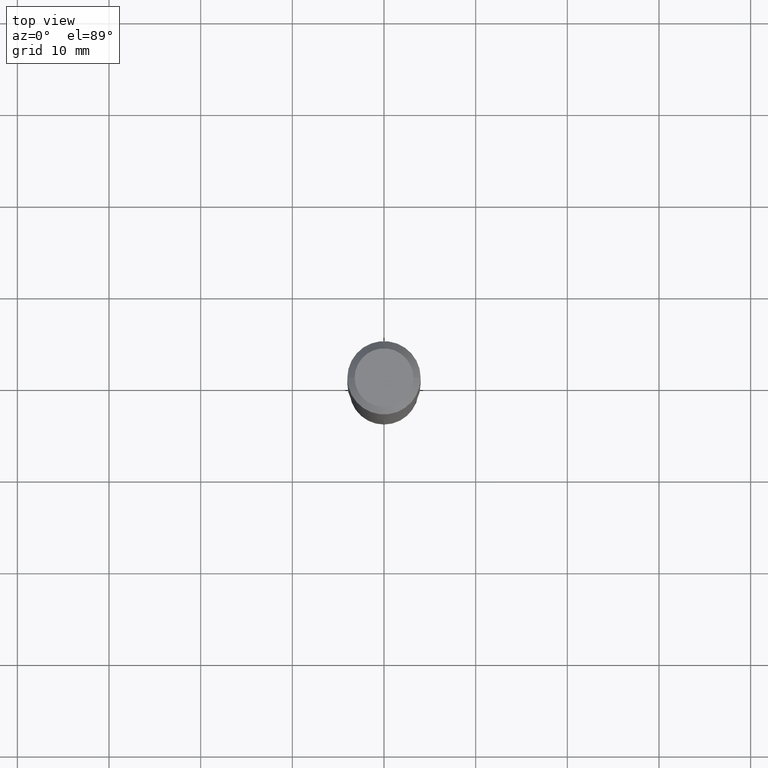
[diagram: clean part render]
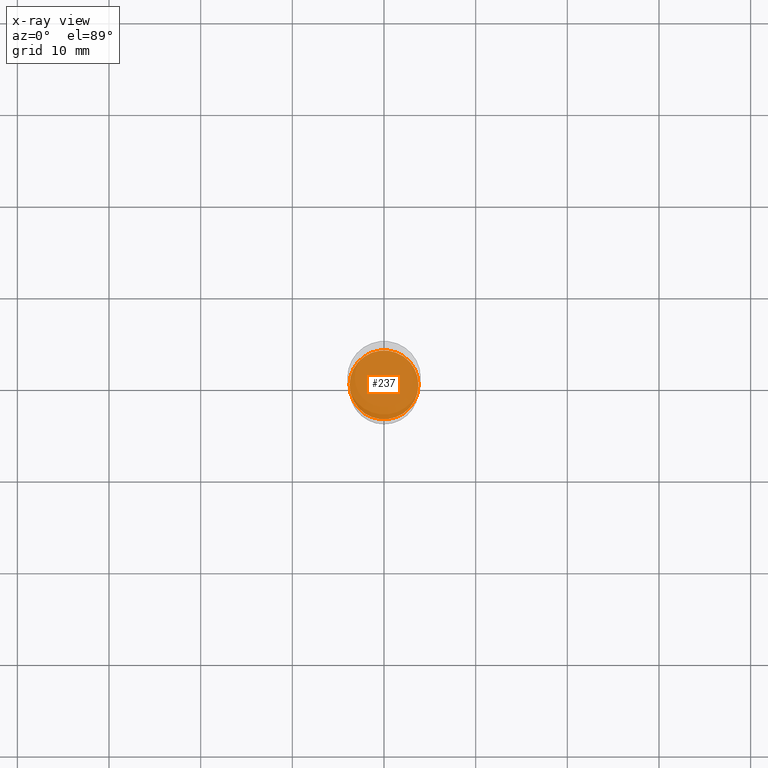
[diagram: x-ray — body ghosted, one internal face saturated and labeled with its STEP entity id]
A machine part, top view, then the same camera in x-ray: the body is ghosted and one INTERNAL B-rep face — a face not visible from any outside direction — is saturated and labeled: STEP entity #237.
In plain terms, the highlighted planar face has unit normal (-0, 0, 1).
Its self-contained STEP definition (entity closure, byte-faithful):
#4 = EDGE_LOOP ( 'NONE', ( #267, #236 ) ) ;
#13 = AXIS2_PLACEMENT_3D ( 'NONE', #221, #308, #468 ) ;
#19 = DIRECTION ( 'NONE',  ( 1.000000000000000000, -6.982962677686265922E-15, 4.876176775795935793E-29 ) ) ;
#24 = CIRCLE ( 'NONE', #13, 0.1479499999999999982 ) ;
#125 = CIRCLE ( 'NONE', #195, 0.1479499999999999982 ) ;
#153 = CARTESIAN_POINT ( 'NONE',  ( -0.1479499999999999982, -5.205281391412926987E-15, -1.792699999999999738 ) ) ;
#174 = EDGE_CURVE ( 'NONE', #206, #177, #24, .T. ) ;
#177 = VERTEX_POINT ( 'NONE', #338 ) ;
#195 = AXIS2_PLACEMENT_3D ( 'NONE', #294, #219, #455 ) ;
#206 = VERTEX_POINT ( 'NONE', #153 ) ;
#219 = DIRECTION ( 'NONE',  ( -2.445468806185136597E-29, 3.491481338843145583E-15, 1.000000000000000000 ) ) ;
#221 = CARTESIAN_POINT ( 'NONE',  ( 4.383991928848093439E-29, -6.259178596144105809E-15, -1.792699999999999738 ) ) ;
#234 = DIRECTION ( 'NONE',  ( -2.438088387897960049E-29, 3.491481338843145188E-15, 1.000000000000000000 ) ) ;
#236 = ORIENTED_EDGE ( 'NONE', *, *, #174, .F. ) ;
#237 = ADVANCED_FACE ( 'NONE', ( #351 ), #275, .F. ) ;
#267 = ORIENTED_EDGE ( 'NONE', *, *, #419, .F. ) ;
#275 = PLANE ( 'NONE',  #278 ) ;
#278 = AXIS2_PLACEMENT_3D ( 'NONE', #438, #234, #19 ) ;
#294 = CARTESIAN_POINT ( 'NONE',  ( 4.383991928848093439E-29, -6.259178596144105809E-15, -1.792699999999999738 ) ) ;
#308 = DIRECTION ( 'NONE',  ( -2.445468806185136597E-29, 3.491481338843145583E-15, 1.000000000000000000 ) ) ;
#338 = CARTESIAN_POINT ( 'NONE',  ( 0.1479499999999999982, -7.292307924307788697E-15, -1.792699999999999738 ) ) ;
#351 = FACE_OUTER_BOUND ( 'NONE', #4, .T. ) ;
#419 = EDGE_CURVE ( 'NONE', #177, #206, #125, .T. ) ;
#438 = CARTESIAN_POINT ( 'NONE',  ( 4.383991928848093439E-29, -6.259178596144105809E-15, -1.792699999999999738 ) ) ;
#455 = DIRECTION ( 'NONE',  ( 1.000000000000000000, -6.982962677686265133E-15, 0.000000000000000000 ) ) ;
#468 = DIRECTION ( 'NONE',  ( 1.000000000000000000, -6.982962677686265133E-15, 0.000000000000000000 ) ) ;